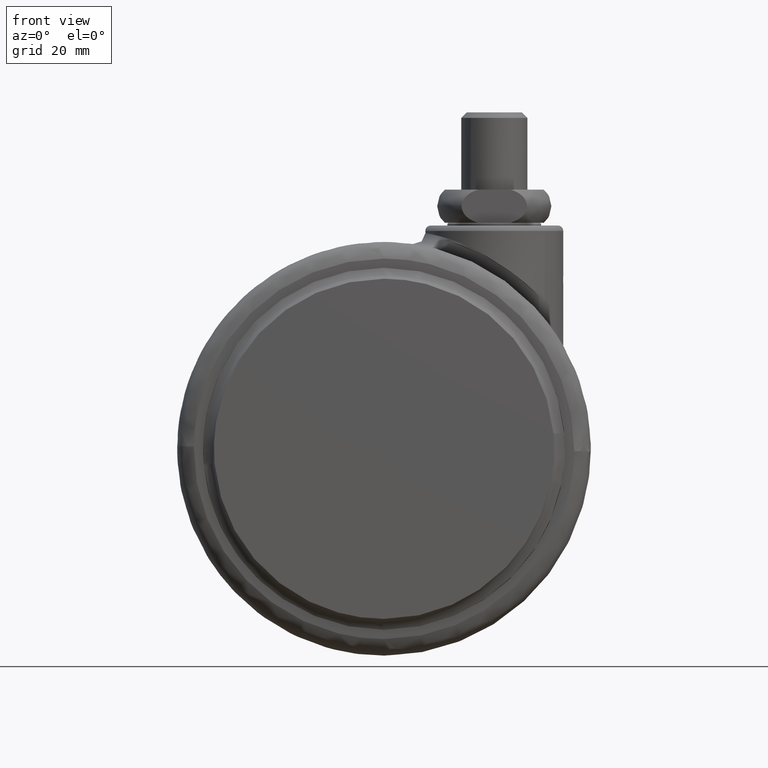
[diagram: clean part render]
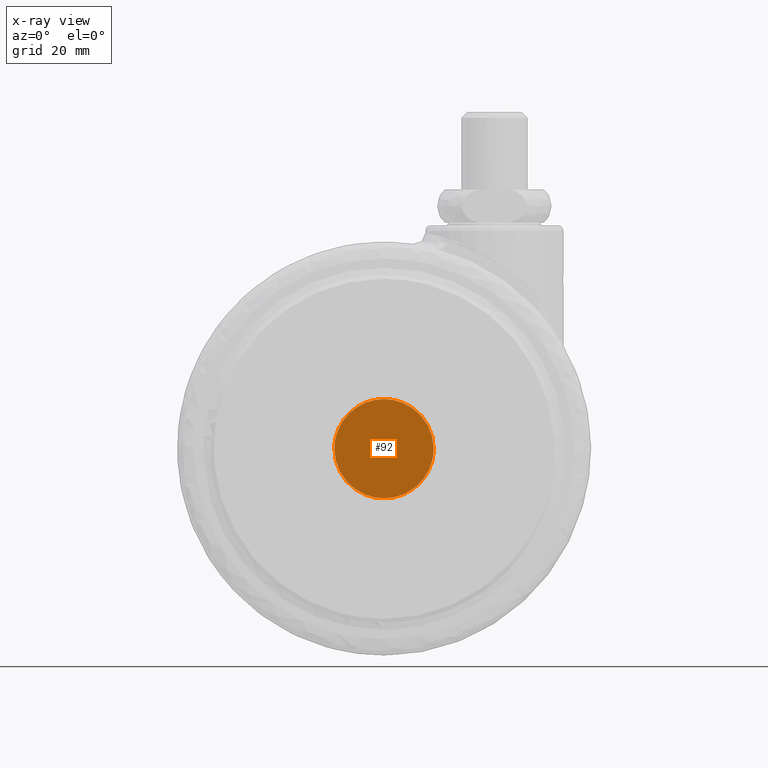
[diagram: x-ray — body ghosted, one internal face saturated and labeled with its STEP entity id]
A machine part, front view, then the same camera in x-ray: the body is ghosted and one INTERNAL B-rep face — a face not visible from any outside direction — is saturated and labeled: STEP entity #92.
In plain terms, the highlighted face is a freeform B-spline surface patch.
Its self-contained STEP definition (entity closure, byte-faithful):
#5=CARTESIAN_POINT('',(-10.100900034887740,9.499999999999771,-50.399099965112761));
#6=CARTESIAN_POINT('',(-10.100900034887740,9.499999999999771,-30.600899552089619));
#7=CARTESIAN_POINT('',(-29.899100447910790,9.499999999999771,-50.399099965112761));
#8=CARTESIAN_POINT('',(-29.899100447910790,9.499999999999771,-30.600899552089619));
#9=B_SPLINE_SURFACE_WITH_KNOTS('',1,1,((#5,#7),(#6,#8)),.UNSPECIFIED.,.F.,.F.,.U.,(2,2),(2,2),(0.0,19.798200413023139),(0.0,19.798200413023050),.UNSPECIFIED.);
#10=CARTESIAN_POINT('',(-20.000000000000451,9.499999999999782,-49.500000000000227));
#11=VERTEX_POINT('',#10);
#12=CARTESIAN_POINT('',(-11.000000000000259,9.499999999999780,-40.499999145359880));
#13=VERTEX_POINT('',#12);
#14=CARTESIAN_POINT('',(-20.000000000000451,9.499999999999782,-49.500000000000227));
#15=CARTESIAN_POINT('',(-19.337315242384499,9.499999999999824,-49.500111687173487));
#16=CARTESIAN_POINT('',(-18.122447231500871,9.499999999999705,-49.365209016064199));
#17=CARTESIAN_POINT('',(-16.504340810850941,9.499999999999877,-48.841638198986288));
#18=CARTESIAN_POINT('',(-15.229912014567921,9.499999999999668,-48.170408173518247));
#19=CARTESIAN_POINT('',(-14.098555025882010,9.499999999999897,-47.342071299908717));
#20=CARTESIAN_POINT('',(-13.236322492953880,9.499999999999741,-46.479836332776742));
#21=CARTESIAN_POINT('',(-12.455163394557029,9.499999999999776,-45.453118213629622));
#22=CARTESIAN_POINT('',(-11.811098665653240,9.499999999999819,-44.332346601201230));
#23=CARTESIAN_POINT('',(-11.180195472007901,9.499999999999726,-42.635162437710001));
#24=CARTESIAN_POINT('',(-10.999707192501701,9.499999999999817,-41.309972339706988));
#25=CARTESIAN_POINT('',(-11.000000000000259,9.499999999999780,-40.499999145359880));
#26=B_SPLINE_CURVE_WITH_KNOTS('',3,(#14,#15,#16,#17,#18,#19,#20,#21,#22,#23,#24,#25),.UNSPECIFIED.,.F.,.U.,(4,1,1,1,1,1,1,1,1,4),(0.000000082083574,1.988046226564464,3.644762988935540,5.080581879247667,6.295508756666395,7.841745626176833,8.725311731449498,10.161148604883540,11.707428625490110,14.137256127570630),.UNSPECIFIED.);
#27=EDGE_CURVE('',#11,#13,#26,.T.);
#28=ORIENTED_EDGE('',*,*,#27,.T.);
#29=CARTESIAN_POINT('',(-13.259398312443100,9.499999999999794,-34.536419472588989));
#30=VERTEX_POINT('',#29);
#31=CARTESIAN_POINT('',(-11.000000000000259,9.499999999999780,-40.499999145359880));
#32=CARTESIAN_POINT('',(-10.999874322675090,9.499999999999801,-39.820945966466311));
#33=CARTESIAN_POINT('',(-11.158246279736341,9.499999999999744,-38.428957208457959));
#34=CARTESIAN_POINT('',(-11.898618032830980,9.499999999999849,-36.369682152832013));
#35=CARTESIAN_POINT('',(-12.741799992909820,9.499999999999739,-35.121160208760351));
#36=CARTESIAN_POINT('',(-13.259398312443100,9.499999999999794,-34.536419472588989));
#37=B_SPLINE_CURVE_WITH_KNOTS('',3,(#31,#32,#33,#34,#35,#36),.UNSPECIFIED.,.F.,.U.,(4,1,1,4),(0.000000020820001,2.037142074809842,4.176129555351439,6.518838703301499),.UNSPECIFIED.);
#38=EDGE_CURVE('',#13,#30,#37,.T.);
#39=ORIENTED_EDGE('',*,*,#38,.T.);
#40=CARTESIAN_POINT('',(-20.000000000000451,9.499999999999782,-31.499999999999769));
#41=VERTEX_POINT('',#40);
#42=CARTESIAN_POINT('',(-13.259398312443100,9.499999999999794,-34.536419472588989));
#43=CARTESIAN_POINT('',(-13.601163995582199,9.499999999999796,-34.150058706728117));
#44=CARTESIAN_POINT('',(-14.322537857834551,9.499999999999774,-33.463814416338273));
#45=CARTESIAN_POINT('',(-15.673856111581550,9.499999999999853,-32.548794592662368));
#46=CARTESIAN_POINT('',(-17.540113559716669,9.499999999999673,-31.737448720232742));
#47=CARTESIAN_POINT('',(-19.087336154477178,9.499999999999888,-31.499571613996881));
#48=CARTESIAN_POINT('',(-20.000000000000451,9.499999999999782,-31.499999999999769));
#49=B_SPLINE_CURVE_WITH_KNOTS('',3,(#42,#43,#44,#45,#46,#47,#48),.UNSPECIFIED.,.F.,.U.,(4,1,1,1,4),(0.000000019056928,1.547487729733628,2.975957628652582,4.880542683054686,7.618417863985730),.UNSPECIFIED.);
#50=EDGE_CURVE('',#30,#41,#49,.T.);
#51=ORIENTED_EDGE('',*,*,#50,.T.);
#52=CARTESIAN_POINT('',(-29.000000000000639,9.499999999999780,-40.500000854640057));
#53=VERTEX_POINT('',#52);
#54=CARTESIAN_POINT('',(-20.000000000000451,9.499999999999782,-31.499999999999769));
#55=CARTESIAN_POINT('',(-20.920439932369430,9.499999999999798,-31.499540529722271));
#56=CARTESIAN_POINT('',(-22.466414057661499,9.499999999999746,-31.739344481531980));
#57=CARTESIAN_POINT('',(-24.264779061088880,9.499999999999819,-32.523482416459942));
#58=CARTESIAN_POINT('',(-25.496977590362881,9.499999999999725,-33.336009145039910));
#59=CARTESIAN_POINT('',(-26.575562504507261,9.499999999999886,-34.289627791492123));
#60=CARTESIAN_POINT('',(-27.500169044657831,9.499999999999673,-35.444902222432077));
#61=CARTESIAN_POINT('',(-28.229937510696100,9.499999999999725,-36.770902602855877));
#62=CARTESIAN_POINT('',(-28.824813345143308,9.499999999999908,-38.401651144914972));
#63=CARTESIAN_POINT('',(-29.000298263895331,9.499999999999504,-39.690026008693152));
#64=CARTESIAN_POINT('',(-29.000000000000639,9.499999999999780,-40.500000854640057));
#65=B_SPLINE_CURVE_WITH_KNOTS('',3,(#54,#55,#56,#57,#58,#59,#60,#61,#62,#63,#64),.UNSPECIFIED.,.F.,.U.,(4,1,1,1,1,1,1,1,4),(0.000000082099529,2.761173550270030,4.638801581208393,5.853732166753561,7.179051857698989,8.946217441188253,10.271599359678200,11.707428625492939,14.137256127570470),.UNSPECIFIED.);
#66=EDGE_CURVE('',#41,#53,#65,.T.);
#67=ORIENTED_EDGE('',*,*,#66,.T.);
#68=CARTESIAN_POINT('',(-26.740601687557810,9.499999999999794,-46.463580527410997));
#69=VERTEX_POINT('',#68);
#70=CARTESIAN_POINT('',(-29.000000000000639,9.499999999999780,-40.500000854640057));
#71=CARTESIAN_POINT('',(-29.000099725145638,9.499999999999808,-41.111149691716562));
#72=CARTESIAN_POINT('',(-28.906236223652719,9.499999999999773,-42.027811777950660));
#73=CARTESIAN_POINT('',(-28.555132590504861,9.499999999999767,-43.376713105776382));
#74=CARTESIAN_POINT('',(-27.967108443809810,9.499999999999913,-44.828888625644261));
#75=CARTESIAN_POINT('',(-27.258246679399239,9.499999999999682,-45.878867146229467));
#76=CARTESIAN_POINT('',(-26.740601687557810,9.499999999999794,-46.463580527410997));
#77=B_SPLINE_CURVE_WITH_KNOTS('',3,(#70,#71,#72,#73,#74,#75,#76),.UNSPECIFIED.,.F.,.U.,(4,1,1,1,4),(0.000000020817248,1.833424111063982,2.750139648222037,4.176129555350533,6.518838703301548),.UNSPECIFIED.);
#78=EDGE_CURVE('',#53,#69,#77,.T.);
#79=ORIENTED_EDGE('',*,*,#78,.T.);
#80=CARTESIAN_POINT('',(-26.740601687557810,9.499999999999794,-46.463580527410997));
#81=CARTESIAN_POINT('',(-26.136185221539652,9.499999999999762,-47.147460356856463));
#82=CARTESIAN_POINT('',(-25.056180637322239,9.499999999999814,-48.045766019300281));
#83=CARTESIAN_POINT('',(-23.239772669522520,9.499999999999787,-48.952325369030213));
#84=CARTESIAN_POINT('',(-21.666523708941131,9.499999999999780,-49.400850821176839));
#85=CARTESIAN_POINT('',(-20.515825159205502,9.499999999999790,-49.500034764209332));
#86=CARTESIAN_POINT('',(-20.000000000000451,9.499999999999782,-49.500000000000227));
#87=B_SPLINE_CURVE_WITH_KNOTS('',3,(#80,#81,#82,#83,#84,#85,#86),.UNSPECIFIED.,.F.,.U.,(4,1,1,1,4),(0.000000019058134,2.737875199999822,4.166306012473450,6.070930153313640,7.618417863985743),.UNSPECIFIED.);
#88=EDGE_CURVE('',#69,#11,#87,.T.);
#89=ORIENTED_EDGE('',*,*,#88,.T.);
#90=EDGE_LOOP('',(#28,#39,#51,#67,#79,#89));
#91=FACE_OUTER_BOUND('',#90,.T.);
#92=ADVANCED_FACE('',(#91),#9,.T.);